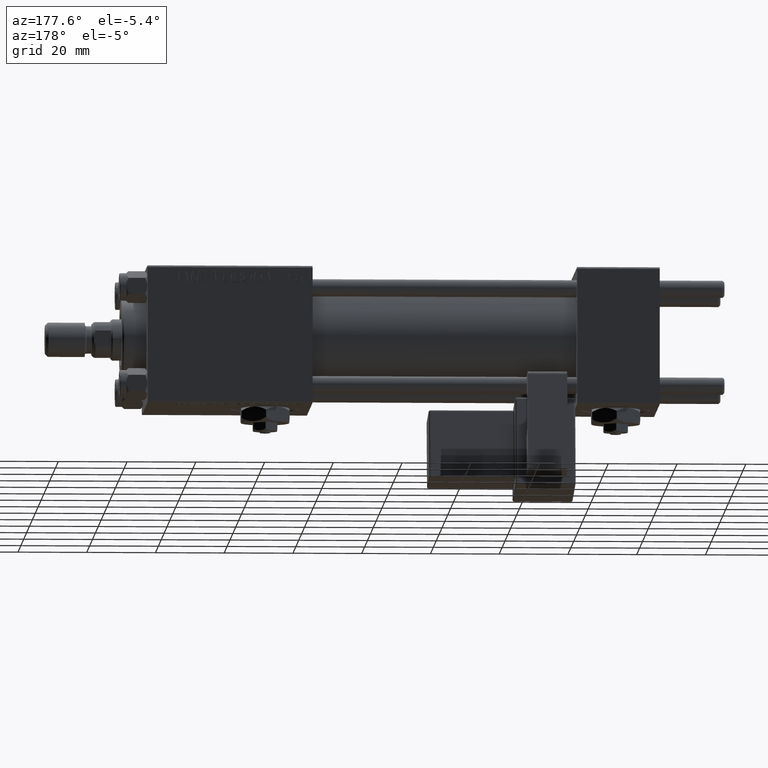
[diagram: clean part render]
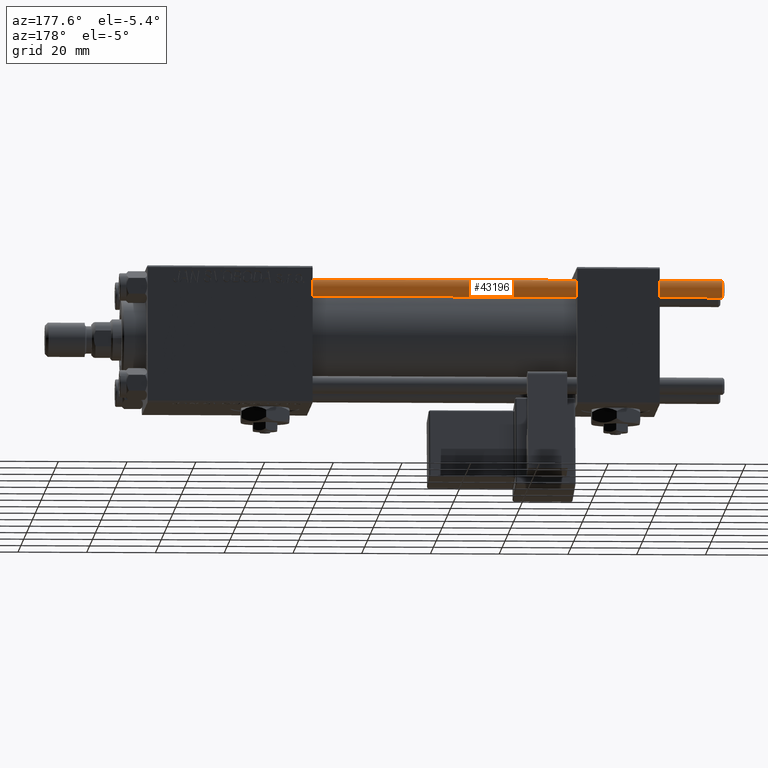
[diagram: same view with one face highlighted and labeled with its STEP entity id]
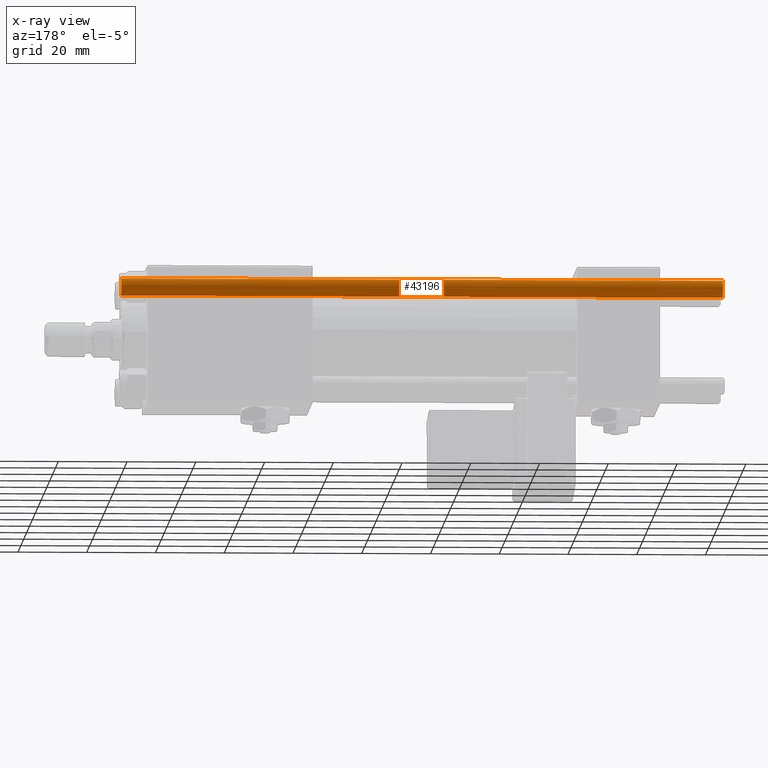
[diagram: x-ray of the same camera — body ghosted, the highlighted face saturated]
A machine part, auxiliary view. The second image highlights one B-rep face of the part: STEP entity #43196.
The next image is the same camera in x-ray: the body ghosted, the highlighted face saturated — about 0% of this face is hidden behind the body in this view.
In plain terms, the highlighted cylindrical surface (edge-blend (fillet) strip) has radius 2.5 mm, axis along (-1, -0, -0).
Its self-contained STEP definition (entity closure, byte-faithful):
#726 = EDGE_CURVE ( 'NONE', #15662, #26735, #10264, .T. ) ;
#1214 = ORIENTED_EDGE ( 'NONE', *, *, #726, .T. ) ;
#3988 = DIRECTION ( 'NONE',  ( 1.000000000000000000, 0.000000000000000000, 0.000000000000000000 ) ) ;
#4575 = DIRECTION ( 'NONE',  ( -1.000000000000000000, 0.000000000000000000, 0.000000000000000000 ) ) ;
#4948 = VERTEX_POINT ( 'NONE', #40594 ) ;
#5786 = ORIENTED_EDGE ( 'NONE', *, *, #32637, .T. ) ;
#7991 = AXIS2_PLACEMENT_3D ( 'NONE', #13126, #16720, #4575 ) ;
#10264 = CIRCLE ( 'NONE', #34050, 2.500000000000000000 ) ;
#13126 = CARTESIAN_POINT ( 'NONE',  ( 0.000000000000000000, 0.000000000000000000, 176.0000000000000000 ) ) ;
#13705 = ORIENTED_EDGE ( 'NONE', *, *, #51755, .T. ) ;
#15662 = VERTEX_POINT ( 'NONE', #22534 ) ;
#16720 = DIRECTION ( 'NONE',  ( -0.000000000000000000, -0.000000000000000000, -1.000000000000000000 ) ) ;
#17505 = VERTEX_POINT ( 'NONE', #52427 ) ;
#20652 = LINE ( 'NONE', #37734, #34462 ) ;
#21082 = CARTESIAN_POINT ( 'NONE',  ( 0.000000000000000000, 0.000000000000000000, 175.5000000000000000 ) ) ;
#22534 = CARTESIAN_POINT ( 'NONE',  ( 2.500000000000000000, 3.061616997868383141E-16, 0.5000000000000281997 ) ) ;
#26075 = CARTESIAN_POINT ( 'NONE',  ( -2.500000000000000000, 0.000000000000000000, 0.5000000000000281997 ) ) ;
#26735 = VERTEX_POINT ( 'NONE', #26075 ) ;
#32637 = EDGE_CURVE ( 'NONE', #4948, #17505, #39046, .T. ) ;
#34039 = ORIENTED_EDGE ( 'NONE', *, *, #43888, .F. ) ;
#34050 = AXIS2_PLACEMENT_3D ( 'NONE', #54157, #41766, #37090 ) ;
#34084 = FACE_OUTER_BOUND ( 'NONE', #42098, .T. ) ;
#34238 = CARTESIAN_POINT ( 'NONE',  ( 2.500000000000000000, 3.061616997868383141E-16, 176.0000000000000000 ) ) ;
#34462 = VECTOR ( 'NONE', #54539, 1000.000000000000000 ) ;
#37090 = DIRECTION ( 'NONE',  ( 1.000000000000000000, 0.000000000000000000, 0.000000000000000000 ) ) ;
#37351 = DIRECTION ( 'NONE',  ( 0.000000000000000000, 0.000000000000000000, -1.000000000000000000 ) ) ;
#37734 = CARTESIAN_POINT ( 'NONE',  ( -2.500000000000000000, 0.000000000000000000, 176.0000000000000000 ) ) ;
#38621 = DIRECTION ( 'NONE',  ( -0.000000000000000000, -0.000000000000000000, -1.000000000000000000 ) ) ;
#39046 = CIRCLE ( 'NONE', #44311, 2.500000000000000000 ) ;
#40594 = CARTESIAN_POINT ( 'NONE',  ( -2.500000000000000000, 0.000000000000000000, 175.5000000000000000 ) ) ;
#41766 = DIRECTION ( 'NONE',  ( -0.000000000000000000, -0.000000000000000000, 1.000000000000000000 ) ) ;
#42098 = EDGE_LOOP ( 'NONE', ( #5786, #13705, #1214, #34039 ) ) ;
#42532 = VECTOR ( 'NONE', #38621, 1000.000000000000000 ) ;
#43196 = ADVANCED_FACE ( 'NONE', ( #34084 ), #46997, .T. ) ;
#43888 = EDGE_CURVE ( 'NONE', #4948, #26735, #20652, .T. ) ;
#44311 = AXIS2_PLACEMENT_3D ( 'NONE', #21082, #37351, #3988 ) ;
#46874 = LINE ( 'NONE', #34238, #42532 ) ;
#46997 = CYLINDRICAL_SURFACE ( 'NONE', #7991, 2.500000000000000000 ) ;
#51755 = EDGE_CURVE ( 'NONE', #17505, #15662, #46874, .T. ) ;
#52427 = CARTESIAN_POINT ( 'NONE',  ( 2.500000000000000000, 3.061616997868383141E-16, 175.5000000000000000 ) ) ;
#54157 = CARTESIAN_POINT ( 'NONE',  ( 0.000000000000000000, 0.000000000000000000, 0.5000000000000281997 ) ) ;
#54539 = DIRECTION ( 'NONE',  ( -0.000000000000000000, -0.000000000000000000, -1.000000000000000000 ) ) ;